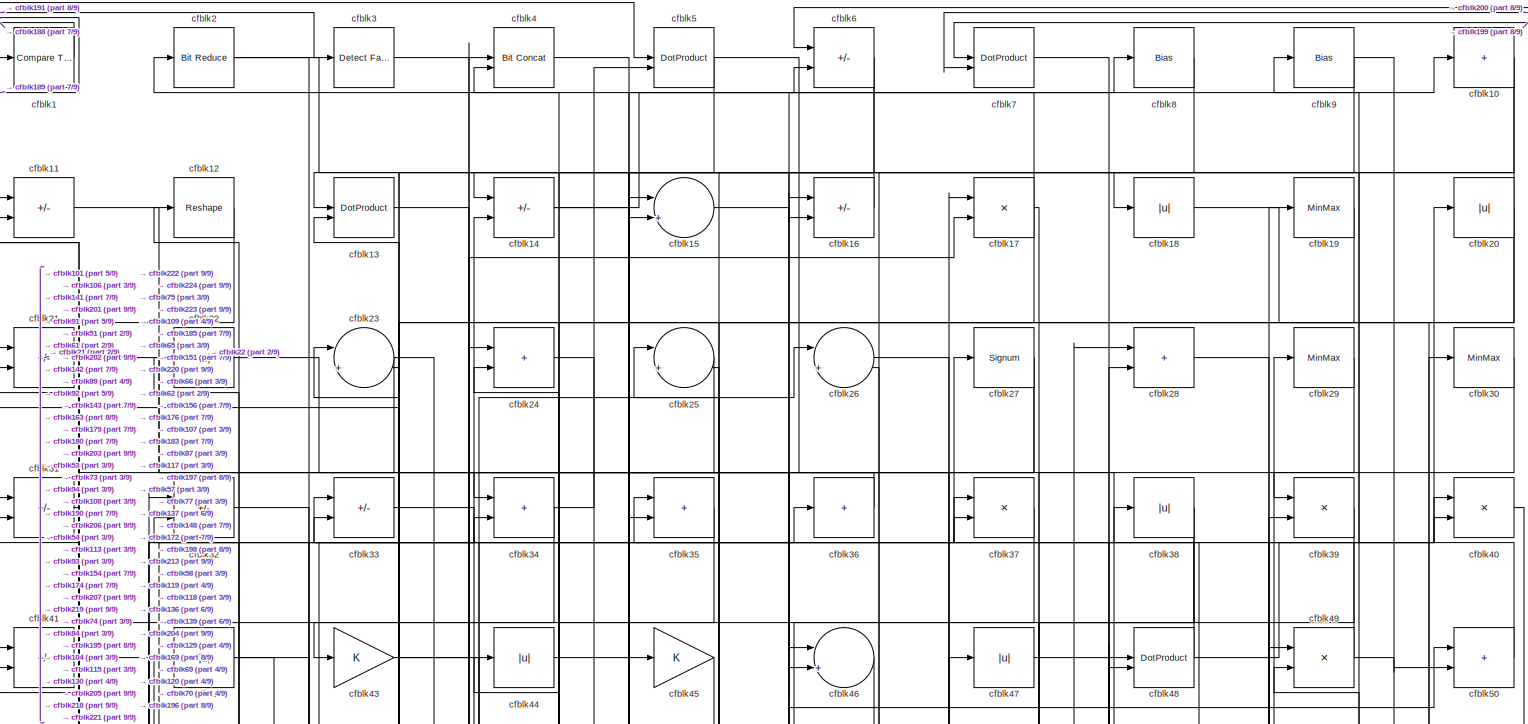
[diagram: root canvas - part 1/9, full width, top band]
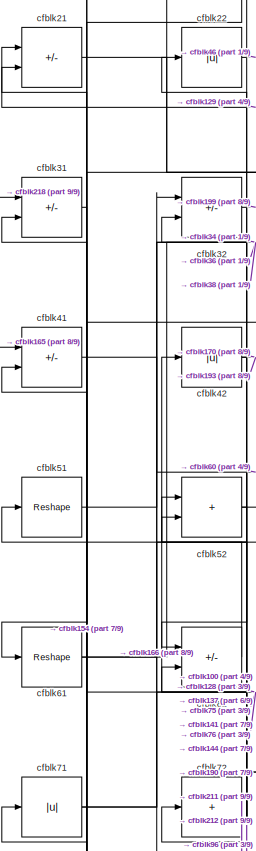
[diagram: root canvas - part 2/9, top left region]
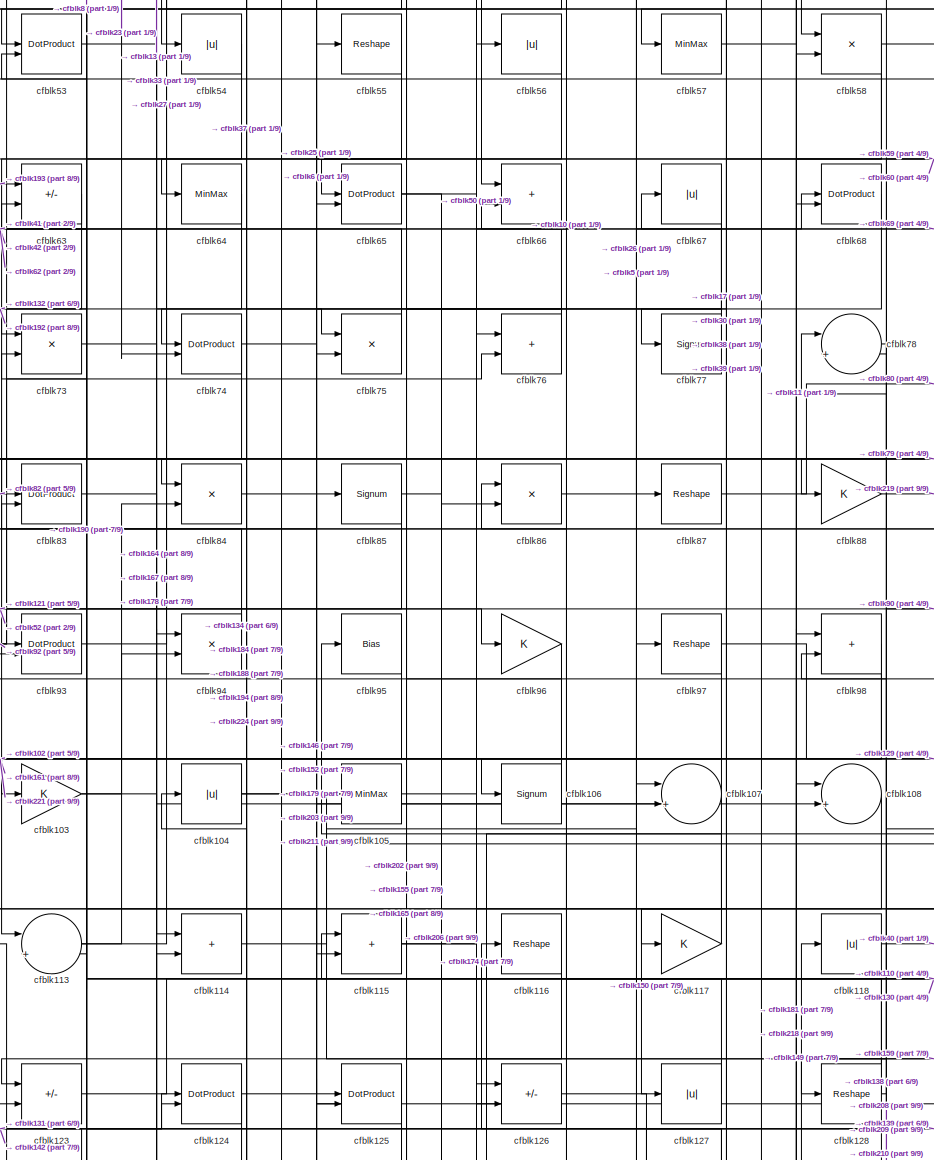
[diagram: root canvas - part 3/9, central region]
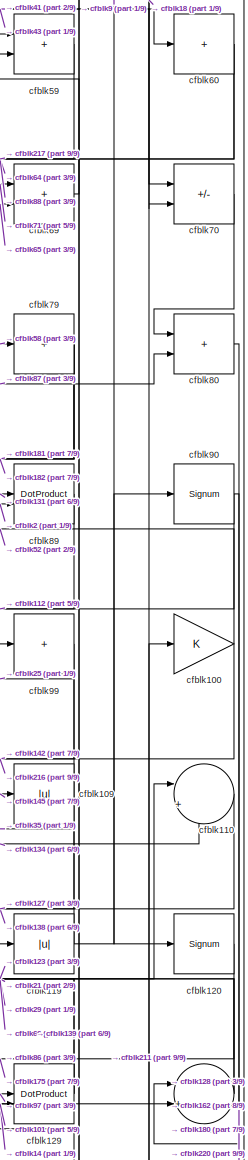
[diagram: root canvas - part 4/9, middle right region]
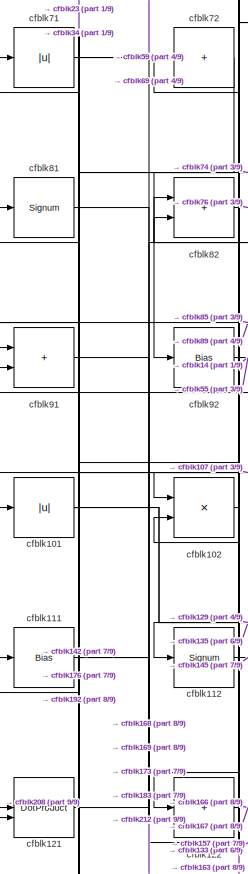
[diagram: root canvas - part 5/9, middle left region]
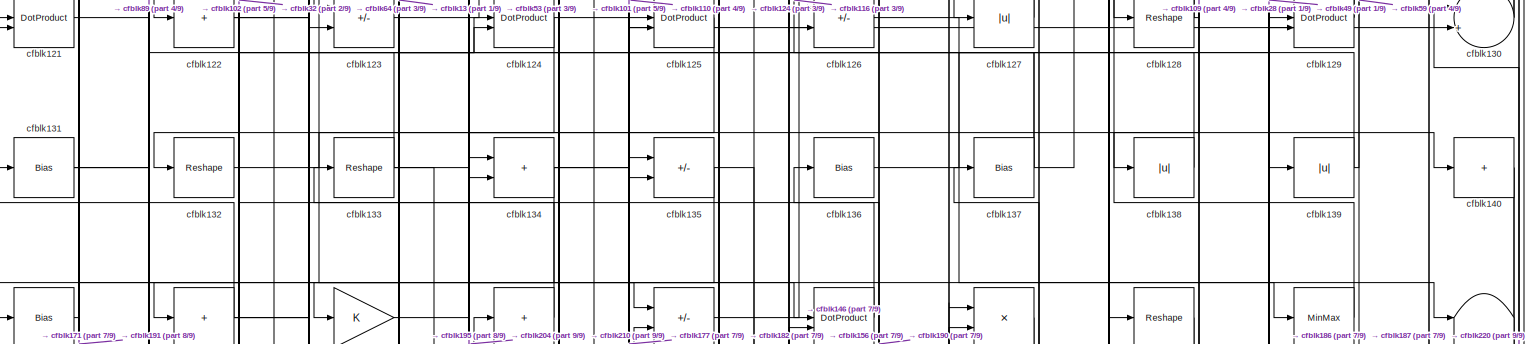
[diagram: root canvas - part 6/9, full width, middle band]
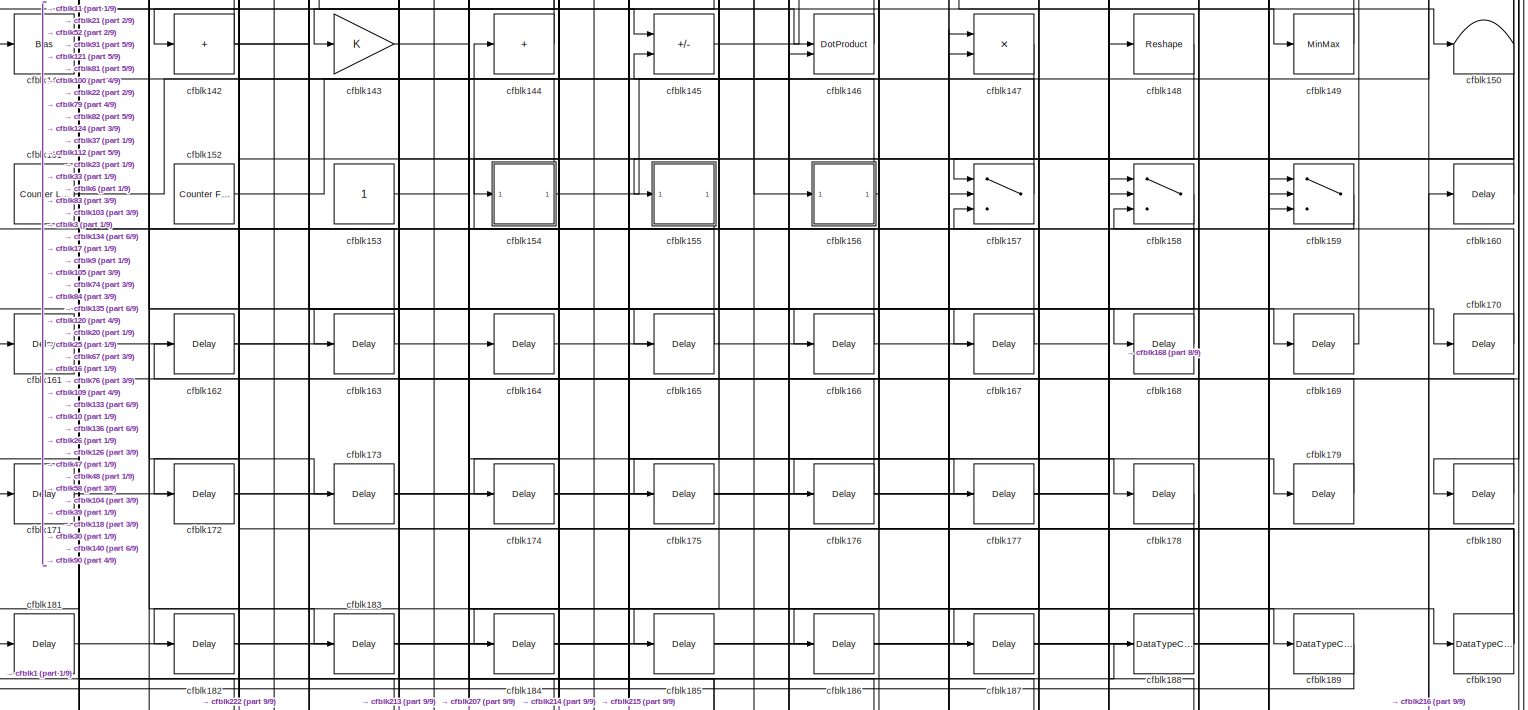
[diagram: root canvas - part 7/9, full width, bottom band]
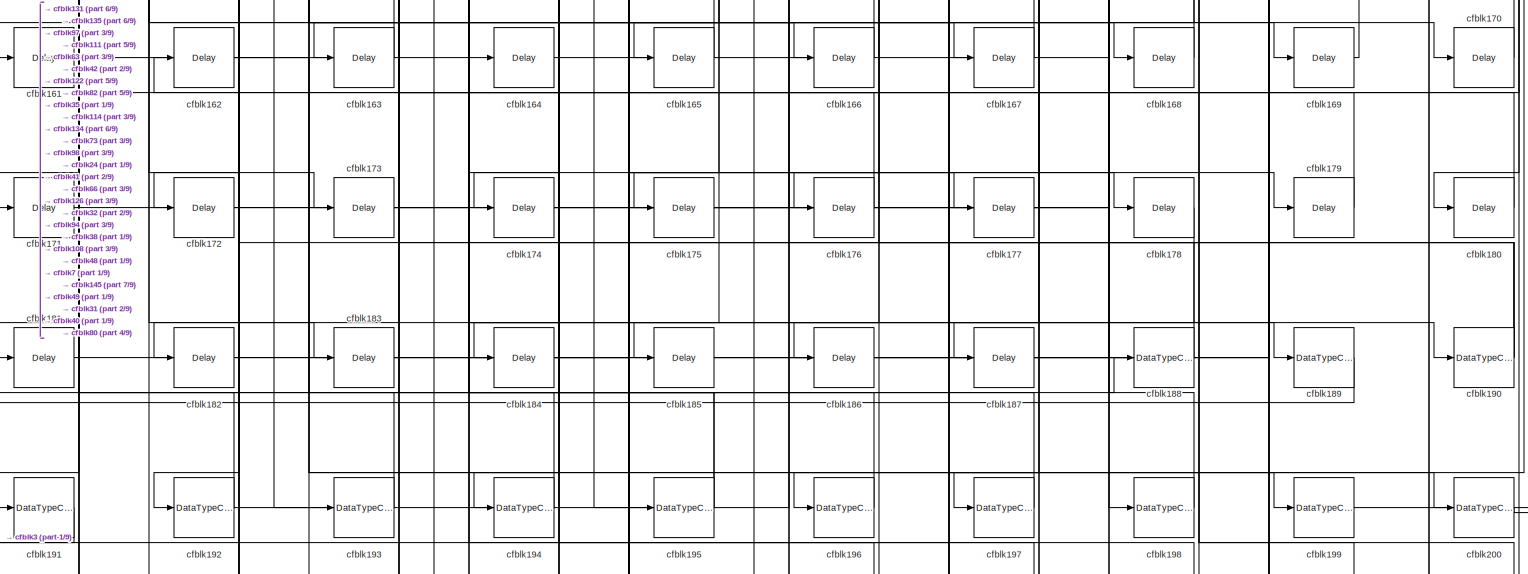
[diagram: root canvas - part 8/9, full width, bottom band]
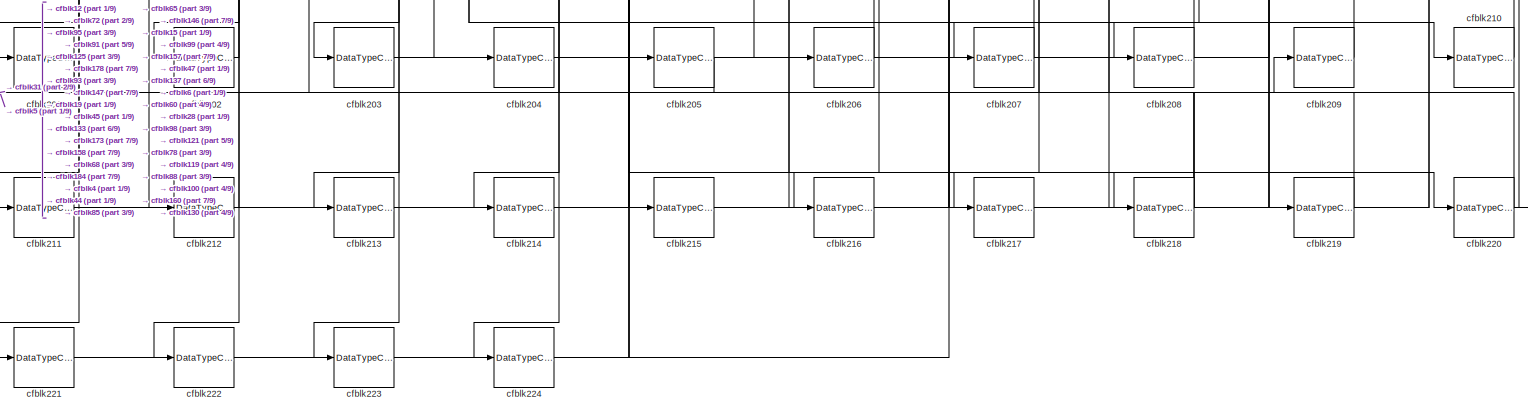
[diagram: root canvas - part 9/9, full width, bottom band]
MODEL slx_6b8f1ebeb162
KIND model
CONFIG AbsTol = auto
CONFIG EnableMultiTasking = off
CONFIG FixedStep = auto
CONFIG MaxStep = auto
CONFIG MinStep = auto
CONFIG RelTol = 1e-3
CONFIG SampleTimeConstraint = Unconstrained
CONFIG SolverName = VariableStepAuto
CONFIG StartTime = 0.0
CONFIG StopTime = 10.0
BLOCK [Reference] cfblk1  REF=hdlsllib/Logic and Bit
Operations/Compare
To Constant
  SourceBlock = hdlsllib/Logic and Bit\nOperations/Compare\nTo Constant
  SourceType = Compare To Constant
BLOCK [Sum] cfblk10
  IconShape = rectangular
  Inputs = +
BLOCK [Gain] cfblk100
BLOCK [Abs] cfblk101
  SaturateOnIntegerOverflow = off
BLOCK [Product] cfblk102
  Inputs = */
  RndMeth = Zero
  SaturateOnIntegerOverflow = on
BLOCK [Gain] cfblk103
BLOCK [Abs] cfblk104
  SaturateOnIntegerOverflow = off
BLOCK [MinMax] cfblk105
BLOCK [Signum] cfblk106
BLOCK [Sum] cfblk107
  Inputs = |++
BLOCK [Sum] cfblk108
  Inputs = |++
BLOCK [Abs] cfblk109
  SaturateOnIntegerOverflow = off
BLOCK [Sum] cfblk11
  IconShape = rectangular
  Inputs = +-
BLOCK [Sum] cfblk110
  Inputs = |++
BLOCK [Bias] cfblk111
  Bias = 0.0
  SaturateOnIntegerOverflow = off
BLOCK [Signum] cfblk112
BLOCK [Sum] cfblk113
  Inputs = |++
BLOCK [Sum] cfblk114
  IconShape = rectangular
BLOCK [Sum] cfblk115
  IconShape = rectangular
BLOCK [Reshape] cfblk116
BLOCK [Gain] cfblk117
BLOCK [Abs] cfblk118
  SaturateOnIntegerOverflow = off
BLOCK [Abs] cfblk119
  SaturateOnIntegerOverflow = off
BLOCK [Reshape] cfblk12
BLOCK [Signum] cfblk120
BLOCK [DotProduct] cfblk121
  OutDataTypeStr = Inherit: Inherit via internal rule
BLOCK [Sum] cfblk122
  IconShape = rectangular
  Inputs = +
BLOCK [Sum] cfblk123
  IconShape = rectangular
  Inputs = +-
BLOCK [DotProduct] cfblk124
  OutDataTypeStr = Inherit: Inherit via internal rule
BLOCK [DotProduct] cfblk125
  OutDataTypeStr = Inherit: Inherit via internal rule
BLOCK [Sum] cfblk126
  IconShape = rectangular
  Inputs = +-
BLOCK [Abs] cfblk127
  SaturateOnIntegerOverflow = off
BLOCK [Reshape] cfblk128
BLOCK [DotProduct] cfblk129
  OutDataTypeStr = Inherit: Inherit via internal rule
BLOCK [DotProduct] cfblk13
  OutDataTypeStr = Inherit: Inherit via internal rule
BLOCK [Sum] cfblk130
  Inputs = |++
BLOCK [Bias] cfblk131
  Bias = 0.0
  SaturateOnIntegerOverflow = off
BLOCK [Reshape] cfblk132
BLOCK [Reshape] cfblk133
BLOCK [Sum] cfblk134
  IconShape = rectangular
BLOCK [Sum] cfblk135
  IconShape = rectangular
  Inputs = +-
BLOCK [Bias] cfblk136
  Bias = 0.0
  SaturateOnIntegerOverflow = off
BLOCK [Bias] cfblk137
  Bias = 0.0
  SaturateOnIntegerOverflow = off
BLOCK [Abs] cfblk138
  SaturateOnIntegerOverflow = off
BLOCK [Abs] cfblk139
  SaturateOnIntegerOverflow = off
BLOCK [Sum] cfblk14
  IconShape = rectangular
  Inputs = +-
BLOCK [Sum] cfblk140
  IconShape = rectangular
  Inputs = +
BLOCK [Bias] cfblk141
  Bias = 0.0
  SaturateOnIntegerOverflow = off
BLOCK [Sum] cfblk142
  IconShape = rectangular
  Inputs = +
BLOCK [Gain] cfblk143
BLOCK [Sum] cfblk144
  IconShape = rectangular
  Inputs = +
BLOCK [Sum] cfblk145
  IconShape = rectangular
  Inputs = +-
BLOCK [DotProduct] cfblk146
  OutDataTypeStr = Inherit: Inherit via internal rule
BLOCK [Product] cfblk147
  Inputs = */
  RndMeth = Zero
  SaturateOnIntegerOverflow = on
BLOCK [Reshape] cfblk148
BLOCK [MinMax] cfblk149
BLOCK [Sum] cfblk15
  Inputs = |++
BLOCK [Terminator] cfblk150
BLOCK [Reference] cfblk151  REF=hdlsllib/Sources/Counter
Limited
  SourceBlock = hdlsllib/Sources/Counter\nLimited
  SourceType = Counter Limited
BLOCK [Reference] cfblk152  REF=hdlsllib/Sources/Counter
Free-Running
  SourceBlock = hdlsllib/Sources/Counter\nFree-Running
  SourceType = Counter Free-Running
BLOCK [Constant] cfblk153
  SampleTime = -1
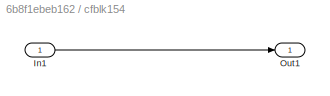
BLOCK [SubSystem] cfblk154
  LibrarySourceBlock = hdlsllib/Ports &\nSubsystems/Subsystem
BLOCK [Inport] cfblk154/In1
BLOCK [Outport] cfblk154/Out1
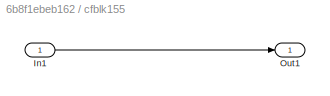
BLOCK [SubSystem] cfblk155
  LibrarySourceBlock = hdlsllib/Ports &\nSubsystems/Subsystem
BLOCK [Inport] cfblk155/In1
BLOCK [Outport] cfblk155/Out1
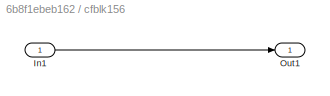
BLOCK [SubSystem] cfblk156
  LibrarySourceBlock = hdlsllib/Ports &\nSubsystems/Subsystem
BLOCK [Inport] cfblk156/In1
BLOCK [Outport] cfblk156/Out1
BLOCK [Switch] cfblk157
  InputSameDT = off
  SaturateOnIntegerOverflow = off
BLOCK [Switch] cfblk158
  InputSameDT = off
  SaturateOnIntegerOverflow = off
BLOCK [Switch] cfblk159
  InputSameDT = off
  SaturateOnIntegerOverflow = off
BLOCK [Sum] cfblk16
  IconShape = rectangular
  Inputs = +-
BLOCK [Delay] cfblk160
  InputPortMap = u0
  SampleTime = 1
BLOCK [Delay] cfblk161
  InputPortMap = u0
  SampleTime = 1
BLOCK [Delay] cfblk162
  InputPortMap = u0
  SampleTime = 1
BLOCK [Delay] cfblk163
  InputPortMap = u0
  SampleTime = 1
BLOCK [Delay] cfblk164
  InputPortMap = u0
  SampleTime = 1
BLOCK [Delay] cfblk165
  InputPortMap = u0
  SampleTime = 1
BLOCK [Delay] cfblk166
  InputPortMap = u0
  SampleTime = 1
BLOCK [Delay] cfblk167
  InputPortMap = u0
  SampleTime = 1
BLOCK [Delay] cfblk168
  InputPortMap = u0
  SampleTime = 1
BLOCK [Delay] cfblk169
  InputPortMap = u0
  SampleTime = 1
BLOCK [Product] cfblk17
  Inputs = */
  RndMeth = Zero
  SaturateOnIntegerOverflow = on
BLOCK [Delay] cfblk170
  InputPortMap = u0
  SampleTime = 1
BLOCK [Delay] cfblk171
  InputPortMap = u0
  SampleTime = 1
BLOCK [Delay] cfblk172
  InputPortMap = u0
  SampleTime = 1
BLOCK [Delay] cfblk173
  InputPortMap = u0
  SampleTime = 1
BLOCK [Delay] cfblk174
  InputPortMap = u0
  SampleTime = 1
BLOCK [Delay] cfblk175
  InputPortMap = u0
  SampleTime = 1
BLOCK [Delay] cfblk176
  InputPortMap = u0
  SampleTime = 1
BLOCK [Delay] cfblk177
  InputPortMap = u0
  SampleTime = 1
BLOCK [Delay] cfblk178
  InputPortMap = u0
  SampleTime = 1
BLOCK [Delay] cfblk179
  InputPortMap = u0
  SampleTime = 1
BLOCK [Abs] cfblk18
  SaturateOnIntegerOverflow = off
BLOCK [Delay] cfblk180
  InputPortMap = u0
  SampleTime = 1
BLOCK [Delay] cfblk181
  InputPortMap = u0
  SampleTime = 1
BLOCK [Delay] cfblk182
  InputPortMap = u0
  SampleTime = 1
BLOCK [Delay] cfblk183
  InputPortMap = u0
  SampleTime = 1
BLOCK [Delay] cfblk184
  InputPortMap = u0
  SampleTime = 1
BLOCK [Delay] cfblk185
  InputPortMap = u0
  SampleTime = 1
BLOCK [Delay] cfblk186
  InputPortMap = u0
  SampleTime = 1
BLOCK [Delay] cfblk187
  InputPortMap = u0
  SampleTime = 1
BLOCK [DataTypeConversion] cfblk188
  OutDataTypeStr = uint8
  RndMeth = Floor
  SaturateOnIntegerOverflow = off
BLOCK [DataTypeConversion] cfblk189
  OutDataTypeStr = uint8
  RndMeth = Floor
  SaturateOnIntegerOverflow = off
BLOCK [MinMax] cfblk19
BLOCK [DataTypeConversion] cfblk190
  RndMeth = Floor
  SaturateOnIntegerOverflow = off
BLOCK [DataTypeConversion] cfblk191
  OutDataTypeStr = uint8
  RndMeth = Floor
  SaturateOnIntegerOverflow = off
BLOCK [DataTypeConversion] cfblk192
  RndMeth = Floor
  SaturateOnIntegerOverflow = off
BLOCK [DataTypeConversion] cfblk193
  OutDataTypeStr = uint8
  RndMeth = Floor
  SaturateOnIntegerOverflow = off
BLOCK [DataTypeConversion] cfblk194
  OutDataTypeStr = uint8
  RndMeth = Floor
  SaturateOnIntegerOverflow = off
BLOCK [DataTypeConversion] cfblk195
  RndMeth = Floor
  SaturateOnIntegerOverflow = off
BLOCK [DataTypeConversion] cfblk196
  OutDataTypeStr = uint8
  RndMeth = Floor
  SaturateOnIntegerOverflow = off
BLOCK [DataTypeConversion] cfblk197
  OutDataTypeStr = uint8
  RndMeth = Floor
  SaturateOnIntegerOverflow = off
BLOCK [DataTypeConversion] cfblk198
  OutDataTypeStr = uint8
  RndMeth = Floor
  SaturateOnIntegerOverflow = off
BLOCK [DataTypeConversion] cfblk199
  OutDataTypeStr = uint8
  RndMeth = Floor
  SaturateOnIntegerOverflow = off
BLOCK [Reference] cfblk2  REF=hdlsllib/Logic and Bit
Operations/Bit Reduce
  SourceBlock = hdlsllib/Logic and Bit\nOperations/Bit Reduce
  SourceType = Bit Reduce
BLOCK [Abs] cfblk20
  SaturateOnIntegerOverflow = off
BLOCK [DataTypeConversion] cfblk200
  OutDataTypeStr = uint8
  RndMeth = Floor
  SaturateOnIntegerOverflow = off
BLOCK [DataTypeConversion] cfblk201
  OutDataTypeStr = uint8
  RndMeth = Floor
  SaturateOnIntegerOverflow = off
BLOCK [DataTypeConversion] cfblk202
  OutDataTypeStr = uint8
  RndMeth = Floor
  SaturateOnIntegerOverflow = off
BLOCK [DataTypeConversion] cfblk203
  OutDataTypeStr = uint8
  RndMeth = Floor
  SaturateOnIntegerOverflow = off
BLOCK [DataTypeConversion] cfblk204
  OutDataTypeStr = uint8
  RndMeth = Floor
  SaturateOnIntegerOverflow = off
BLOCK [DataTypeConversion] cfblk205
  OutDataTypeStr = uint8
  RndMeth = Floor
  SaturateOnIntegerOverflow = off
BLOCK [DataTypeConversion] cfblk206
  OutDataTypeStr = uint8
  RndMeth = Floor
  SaturateOnIntegerOverflow = off
BLOCK [DataTypeConversion] cfblk207
  OutDataTypeStr = uint8
  RndMeth = Floor
  SaturateOnIntegerOverflow = off
BLOCK [DataTypeConversion] cfblk208
  OutDataTypeStr = uint8
  RndMeth = Floor
  SaturateOnIntegerOverflow = off
BLOCK [DataTypeConversion] cfblk209
  OutDataTypeStr = uint8
  RndMeth = Floor
  SaturateOnIntegerOverflow = off
BLOCK [Sum] cfblk21
  IconShape = rectangular
  Inputs = +-
BLOCK [DataTypeConversion] cfblk210
  OutDataTypeStr = uint8
  RndMeth = Floor
  SaturateOnIntegerOverflow = off
BLOCK [DataTypeConversion] cfblk211
  RndMeth = Floor
  SaturateOnIntegerOverflow = off
BLOCK [DataTypeConversion] cfblk212
  OutDataTypeStr = uint8
  RndMeth = Floor
  SaturateOnIntegerOverflow = off
BLOCK [DataTypeConversion] cfblk213
  RndMeth = Floor
  SaturateOnIntegerOverflow = off
BLOCK [DataTypeConversion] cfblk214
  OutDataTypeStr = uint8
  RndMeth = Floor
  SaturateOnIntegerOverflow = off
BLOCK [DataTypeConversion] cfblk215
  OutDataTypeStr = uint8
  RndMeth = Floor
  SaturateOnIntegerOverflow = off
BLOCK [DataTypeConversion] cfblk216
  OutDataTypeStr = uint8
  RndMeth = Floor
  SaturateOnIntegerOverflow = off
BLOCK [DataTypeConversion] cfblk217
  OutDataTypeStr = uint8
  RndMeth = Floor
  SaturateOnIntegerOverflow = off
BLOCK [DataTypeConversion] cfblk218
  RndMeth = Floor
  SaturateOnIntegerOverflow = off
BLOCK [DataTypeConversion] cfblk219
  OutDataTypeStr = uint8
  RndMeth = Floor
  SaturateOnIntegerOverflow = off
BLOCK [Abs] cfblk22
  SaturateOnIntegerOverflow = off
BLOCK [DataTypeConversion] cfblk220
  RndMeth = Floor
  SaturateOnIntegerOverflow = off
BLOCK [DataTypeConversion] cfblk221
  OutDataTypeStr = uint8
  RndMeth = Floor
  SaturateOnIntegerOverflow = off
BLOCK [DataTypeConversion] cfblk222
  OutDataTypeStr = uint8
  RndMeth = Floor
  SaturateOnIntegerOverflow = off
BLOCK [DataTypeConversion] cfblk223
  OutDataTypeStr = uint8
  RndMeth = Floor
  SaturateOnIntegerOverflow = off
BLOCK [DataTypeConversion] cfblk224
  OutDataTypeStr = uint8
  RndMeth = Floor
  SaturateOnIntegerOverflow = off
BLOCK [Sum] cfblk23
  Inputs = |++
BLOCK [Sum] cfblk24
  IconShape = rectangular
BLOCK [Sum] cfblk25
  Inputs = |++
BLOCK [Sum] cfblk26
  Inputs = |++
BLOCK [Signum] cfblk27
BLOCK [Sum] cfblk28
  IconShape = rectangular
BLOCK [MinMax] cfblk29
BLOCK [Reference] cfblk3  REF=hdlsllib/Logic and Bit
Operations/Detect Fall
Negative
  SourceBlock = hdlsllib/Logic and Bit\nOperations/Detect Fall\nNegative
  SourceType = Detect Fall Negative
BLOCK [MinMax] cfblk30
BLOCK [Sum] cfblk31
  IconShape = rectangular
  Inputs = +-
BLOCK [Sum] cfblk32
  IconShape = rectangular
  Inputs = +-
BLOCK [Sum] cfblk33
  IconShape = rectangular
  Inputs = +-
BLOCK [Sum] cfblk34
  IconShape = rectangular
BLOCK [Sum] cfblk35
  IconShape = rectangular
BLOCK [Sum] cfblk36
  IconShape = rectangular
  Inputs = +
BLOCK [Product] cfblk37
  Inputs = */
  RndMeth = Zero
  SaturateOnIntegerOverflow = on
BLOCK [Abs] cfblk38
  SaturateOnIntegerOverflow = off
BLOCK [Product] cfblk39
  Inputs = */
  RndMeth = Zero
  SaturateOnIntegerOverflow = on
BLOCK [Reference] cfblk4  REF=hdlsllib/Logic and Bit
Operations/Bit Concat
  SourceBlock = hdlsllib/Logic and Bit\nOperations/Bit Concat
  SourceType = Bit Concat
BLOCK [Product] cfblk40
  Inputs = */
  RndMeth = Zero
  SaturateOnIntegerOverflow = on
BLOCK [Sum] cfblk41
  IconShape = rectangular
  Inputs = +-
BLOCK [Abs] cfblk42
  SaturateOnIntegerOverflow = off
BLOCK [Gain] cfblk43
BLOCK [Abs] cfblk44
  SaturateOnIntegerOverflow = off
BLOCK [Gain] cfblk45
BLOCK [Sum] cfblk46
  Inputs = |++
BLOCK [Abs] cfblk47
  SaturateOnIntegerOverflow = off
BLOCK [DotProduct] cfblk48
  OutDataTypeStr = Inherit: Inherit via internal rule
BLOCK [Product] cfblk49
  Inputs = */
  RndMeth = Zero
  SaturateOnIntegerOverflow = on
BLOCK [DotProduct] cfblk5
  OutDataTypeStr = Inherit: Inherit via internal rule
BLOCK [Sum] cfblk50
  IconShape = rectangular
BLOCK [Reshape] cfblk51
BLOCK [Sum] cfblk52
  IconShape = rectangular
BLOCK [DotProduct] cfblk53
  OutDataTypeStr = Inherit: Inherit via internal rule
BLOCK [Abs] cfblk54
  SaturateOnIntegerOverflow = off
BLOCK [Reshape] cfblk55
BLOCK [Abs] cfblk56
  SaturateOnIntegerOverflow = off
BLOCK [MinMax] cfblk57
BLOCK [Product] cfblk58
  Inputs = */
  RndMeth = Zero
  SaturateOnIntegerOverflow = on
BLOCK [Sum] cfblk59
  IconShape = rectangular
BLOCK [Sum] cfblk6
  IconShape = rectangular
  Inputs = +-
BLOCK [Sum] cfblk60
  IconShape = rectangular
  Inputs = +
BLOCK [Reshape] cfblk61
BLOCK [Sum] cfblk62
  IconShape = rectangular
  Inputs = +-
BLOCK [Sum] cfblk63
  IconShape = rectangular
  Inputs = +-
BLOCK [MinMax] cfblk64
BLOCK [DotProduct] cfblk65
  OutDataTypeStr = Inherit: Inherit via internal rule
BLOCK [Sum] cfblk66
  IconShape = rectangular
BLOCK [Abs] cfblk67
  SaturateOnIntegerOverflow = off
BLOCK [DotProduct] cfblk68
  OutDataTypeStr = Inherit: Inherit via internal rule
BLOCK [Sum] cfblk69
  IconShape = rectangular
BLOCK [DotProduct] cfblk7
  OutDataTypeStr = Inherit: Inherit via internal rule
BLOCK [Sum] cfblk70
  IconShape = rectangular
  Inputs = +-
BLOCK [Abs] cfblk71
  SaturateOnIntegerOverflow = off
BLOCK [Sum] cfblk72
  IconShape = rectangular
  Inputs = +
BLOCK [Product] cfblk73
  Inputs = */
  RndMeth = Zero
  SaturateOnIntegerOverflow = on
BLOCK [DotProduct] cfblk74
  OutDataTypeStr = Inherit: Inherit via internal rule
BLOCK [Product] cfblk75
  Inputs = */
  RndMeth = Zero
  SaturateOnIntegerOverflow = on
BLOCK [Sum] cfblk76
  IconShape = rectangular
BLOCK [Signum] cfblk77
BLOCK [Sum] cfblk78
  Inputs = |++
BLOCK [Sum] cfblk79
  IconShape = rectangular
  Inputs = +
BLOCK [Bias] cfblk8
  Bias = 0.0
  SaturateOnIntegerOverflow = off
BLOCK [Sum] cfblk80
  IconShape = rectangular
BLOCK [Signum] cfblk81
BLOCK [Sum] cfblk82
  IconShape = rectangular
BLOCK [DotProduct] cfblk83
  OutDataTypeStr = Inherit: Inherit via internal rule
BLOCK [Product] cfblk84
  Inputs = */
  RndMeth = Zero
  SaturateOnIntegerOverflow = on
BLOCK [Signum] cfblk85
BLOCK [Product] cfblk86
  Inputs = */
  RndMeth = Zero
  SaturateOnIntegerOverflow = on
BLOCK [Reshape] cfblk87
BLOCK [Gain] cfblk88
BLOCK [DotProduct] cfblk89
  OutDataTypeStr = Inherit: Inherit via internal rule
BLOCK [Bias] cfblk9
  Bias = 0.0
  SaturateOnIntegerOverflow = off
BLOCK [Signum] cfblk90
BLOCK [Sum] cfblk91
  IconShape = rectangular
BLOCK [Bias] cfblk92
  Bias = 0.0
  SaturateOnIntegerOverflow = off
BLOCK [DotProduct] cfblk93
  OutDataTypeStr = Inherit: Inherit via internal rule
BLOCK [Product] cfblk94
  Inputs = */
  RndMeth = Zero
  SaturateOnIntegerOverflow = on
BLOCK [Bias] cfblk95
  Bias = 0.0
  SaturateOnIntegerOverflow = off
BLOCK [Gain] cfblk96
BLOCK [Reshape] cfblk97
BLOCK [Sum] cfblk98
  IconShape = rectangular
BLOCK [Sum] cfblk99
  IconShape = rectangular
  Inputs = +
NET cfblk100:1 -> cfblk142:1, cfblk52:2
NET cfblk101:1 -> cfblk129:2, cfblk135:1, cfblk71:1
LINE cfblk102:1 -> cfblk122:1
NET cfblk103:1 -> cfblk178:1, cfblk84:2
NET cfblk104:1 -> cfblk159:1, cfblk6:2
LINE cfblk105:1 -> cfblk56:1
LINE cfblk106:1 -> cfblk11:1
NET cfblk107:1 -> cfblk102:1, cfblk126:2
LINE cfblk108:1 -> cfblk113:2
NET cfblk109:1 -> cfblk138:1, cfblk25:2
NET cfblk10:1 -> cfblk176:1, cfblk65:1
LINE cfblk110:1 -> cfblk127:1
NET cfblk111:1 -> cfblk168:1, cfblk169:1
LINE cfblk112:1 -> cfblk145:1
NET cfblk113:1 -> cfblk26:1, cfblk94:2
LINE cfblk114:1 -> cfblk97:1
NET cfblk115:1 -> cfblk10:1, cfblk50:1
LINE cfblk116:1 -> cfblk123:1
LINE cfblk117:1 -> cfblk95:1
LINE cfblk118:1 -> cfblk40:1
NET cfblk119:1 -> cfblk35:1, cfblk90:1
LINE cfblk11:1 -> cfblk58:1
LINE cfblk120:1 -> cfblk175:1
LINE cfblk121:1 -> cfblk173:1
NET cfblk122:1 -> cfblk166:1, cfblk167:1
LINE cfblk123:1 -> cfblk110:1
NET cfblk124:1 -> cfblk107:2, cfblk134:2
LINE cfblk125:1 -> cfblk202:1
LINE cfblk126:1 -> cfblk150:1
LINE cfblk127:1 -> cfblk115:1
NET cfblk128:1 -> cfblk62:2, cfblk73:2, cfblk98:2
NET cfblk129:1 -> cfblk21:2, cfblk29:1
LINE cfblk12:1 -> cfblk201:1
NET cfblk130:1 -> cfblk66:2, cfblk86:1
NET cfblk131:1 -> cfblk124:2, cfblk89:1
LINE cfblk132:1 -> cfblk140:1
NET cfblk133:1 -> cfblk102:2, cfblk204:1, cfblk210:1
NET cfblk134:1 -> cfblk110:2, cfblk171:1, cfblk177:1
NET cfblk135:1 -> cfblk156:1, cfblk191:1
LINE cfblk136:1 -> cfblk49:1
NET cfblk137:1 -> cfblk13:2, cfblk28:1, cfblk32:2
LINE cfblk138:1 -> cfblk53:2
NET cfblk139:1 -> cfblk116:1, cfblk59:2
LINE cfblk13:1 -> cfblk108:2
NET cfblk140:1 -> cfblk186:1, cfblk187:1
LINE cfblk141:1 -> cfblk11:2
NET cfblk142:1 -> cfblk124:1, cfblk37:1, cfblk81:1
LINE cfblk143:1 -> cfblk149:1
LINE cfblk144:1 -> cfblk52:1
LINE cfblk145:1 -> cfblk109:1
LINE cfblk146:1 -> cfblk133:1
LINE cfblk147:1 -> cfblk213:1
LINE cfblk148:1 -> cfblk172:1
LINE cfblk149:1 -> cfblk118:1
NET cfblk14:1 -> cfblk130:2, cfblk8:1
LINE cfblk151:1 -> cfblk16:1
LINE cfblk152:1 -> cfblk105:1
LINE cfblk153:1 -> cfblk189:1
LINE cfblk154/In1:1 -> cfblk154/Out1:1
NET cfblk154:1 -> cfblk21:1, cfblk30:1
LINE cfblk155/In1:1 -> cfblk155/Out1:1
LINE cfblk155:1 -> cfblk144:1
LINE cfblk156/In1:1 -> cfblk156/Out1:1
NET cfblk156:1 -> cfblk25:1, cfblk26:2
LINE cfblk157:1 -> cfblk82:1
LINE cfblk158:1 -> cfblk214:1
LINE cfblk159:1 -> cfblk158:3
LINE cfblk15:1 -> cfblk220:1
LINE cfblk160:1 -> cfblk157:1
LINE cfblk161:1 -> cfblk114:2
LINE cfblk162:1 -> cfblk200:1
LINE cfblk163:1 -> cfblk82:2
LINE cfblk164:1 -> cfblk108:1
LINE cfblk165:1 -> cfblk41:1
LINE cfblk166:1 -> cfblk32:1
LINE cfblk167:1 -> cfblk94:1
LINE cfblk168:1 -> cfblk145:2
LINE cfblk169:1 -> cfblk49:2
LINE cfblk16:1 -> cfblk13:1
LINE cfblk170:1 -> cfblk31:2
LINE cfblk171:1 -> cfblk158:1
LINE cfblk172:1 -> cfblk48:2
LINE cfblk173:1 -> cfblk207:1
LINE cfblk174:1 -> cfblk76:1
LINE cfblk175:1 -> cfblk158:2
LINE cfblk176:1 -> cfblk91:2
LINE cfblk177:1 -> cfblk157:3
LINE cfblk178:1 -> cfblk222:1
LINE cfblk179:1 -> cfblk33:2
NET cfblk17:1 -> cfblk154:1, cfblk2:1, cfblk57:1
LINE cfblk180:1 -> cfblk23:2
LINE cfblk181:1 -> cfblk58:2
LINE cfblk182:1 -> cfblk135:2
LINE cfblk183:1 -> cfblk17:1
LINE cfblk184:1 -> cfblk215:1
LINE cfblk185:1 -> cfblk39:2
LINE cfblk186:1 -> cfblk159:2
LINE cfblk187:1 -> cfblk159:3
LINE cfblk188:1 -> cfblk104:1
LINE cfblk189:1 -> cfblk1:1
LINE cfblk18:1 -> cfblk70:1
NET cfblk190:1 -> cfblk136:1, cfblk22:1, cfblk83:2
LINE cfblk191:1 -> cfblk3:1
NET cfblk192:1 -> cfblk111:1, cfblk126:1
LINE cfblk193:1 -> cfblk63:1
LINE cfblk194:1 -> cfblk63:2
NET cfblk195:1 -> cfblk131:1, cfblk134:1
LINE cfblk196:1 -> cfblk24:1
LINE cfblk197:1 -> cfblk24:2
LINE cfblk198:1 -> cfblk48:1
LINE cfblk199:1 -> cfblk7:1
LINE cfblk19:1 -> cfblk203:1
LINE cfblk1:1 -> cfblk188:1
LINE cfblk200:1 -> cfblk7:2
LINE cfblk201:1 -> cfblk5:1
LINE cfblk202:1 -> cfblk12:1
LINE cfblk203:1 -> cfblk125:1
LINE cfblk204:1 -> cfblk19:1
LINE cfblk205:1 -> cfblk209:1
LINE cfblk206:1 -> cfblk4:1
LINE cfblk207:1 -> cfblk4:2
LINE cfblk208:1 -> cfblk121:1
LINE cfblk209:1 -> cfblk78:1
NET cfblk20:1 -> cfblk185:1, cfblk18:1, cfblk43:1
LINE cfblk210:1 -> cfblk78:2
NET cfblk211:1 -> cfblk100:1, cfblk119:1, cfblk85:1
LINE cfblk212:1 -> cfblk72:1
NET cfblk213:1 -> cfblk146:2, cfblk157:2, cfblk28:2
LINE cfblk214:1 -> cfblk147:1
LINE cfblk215:1 -> cfblk147:2
LINE cfblk216:1 -> cfblk160:1
LINE cfblk217:1 -> cfblk99:1
NET cfblk218:1 -> cfblk31:1, cfblk93:1, cfblk98:1
LINE cfblk219:1 -> cfblk44:1
LINE cfblk21:1 -> cfblk46:2
NET cfblk220:1 -> cfblk130:1, cfblk137:1, cfblk6:1
LINE cfblk221:1 -> cfblk15:1
LINE cfblk222:1 -> cfblk15:2
LINE cfblk223:1 -> cfblk47:1
LINE cfblk224:1 -> cfblk45:1
LINE cfblk22:1 -> cfblk46:1
NET cfblk23:1 -> cfblk74:2, cfblk91:1
LINE cfblk24:1 -> cfblk195:1
LINE cfblk25:1 -> cfblk75:2
LINE cfblk26:1 -> cfblk87:1
NET cfblk27:1 -> cfblk73:1, cfblk84:1
LINE cfblk28:1 -> cfblk139:1
LINE cfblk29:1 -> cfblk39:1
NET cfblk2:1 -> cfblk16:2, cfblk89:2
LINE cfblk30:1 -> cfblk77:1
LINE cfblk31:1 -> cfblk61:1
LINE cfblk32:1 -> cfblk199:1
LINE cfblk33:1 -> cfblk54:1
NET cfblk34:1 -> cfblk101:1, cfblk5:2
LINE cfblk35:1 -> cfblk163:1
LINE cfblk36:1 -> cfblk34:1
LINE cfblk37:1 -> cfblk74:1
NET cfblk38:1 -> cfblk197:1, cfblk66:1
LINE cfblk39:1 -> cfblk117:1
LINE cfblk3:1 -> cfblk190:1
LINE cfblk40:1 -> cfblk196:1
LINE cfblk41:1 -> cfblk60:1
NET cfblk42:1 -> cfblk170:1, cfblk193:1
NET cfblk43:1 -> cfblk17:2, cfblk70:2
LINE cfblk44:1 -> cfblk218:1
LINE cfblk45:1 -> cfblk223:1
LINE cfblk46:1 -> cfblk62:1
LINE cfblk47:1 -> cfblk148:1
NET cfblk48:1 -> cfblk20:1, cfblk37:2
NET cfblk49:1 -> cfblk33:1, cfblk50:2
LINE cfblk4:1 -> cfblk205:1
LINE cfblk50:1 -> cfblk14:1
LINE cfblk51:1 -> cfblk38:1
NET cfblk52:1 -> cfblk141:1, cfblk96:1
LINE cfblk53:1 -> cfblk75:1
LINE cfblk54:1 -> cfblk83:1
LINE cfblk55:1 -> cfblk65:2
LINE cfblk56:1 -> cfblk113:1
LINE cfblk57:1 -> cfblk40:2
NET cfblk58:1 -> cfblk68:2, cfblk79:1, cfblk93:2
LINE cfblk59:1 -> cfblk64:1
NET cfblk5:1 -> cfblk107:1, cfblk35:2
NET cfblk60:1 -> cfblk217:1, cfblk88:1
NET cfblk61:1 -> cfblk34:2, cfblk36:1
LINE cfblk62:1 -> cfblk51:1
LINE cfblk63:1 -> cfblk192:1
LINE cfblk64:1 -> cfblk132:1
NET cfblk65:1 -> cfblk206:1, cfblk69:2
NET cfblk66:1 -> cfblk125:2, cfblk165:1
NET cfblk67:1 -> cfblk155:1, cfblk184:1
LINE cfblk68:1 -> cfblk224:1
LINE cfblk69:1 -> cfblk9:1
NET cfblk6:1 -> cfblk115:2, cfblk143:1
LINE cfblk70:1 -> cfblk80:1
NET cfblk71:1 -> cfblk59:1, cfblk69:1
LINE cfblk72:1 -> cfblk211:1
LINE cfblk73:1 -> cfblk164:1
NET cfblk74:1 -> cfblk146:1, cfblk92:1
LINE cfblk75:1 -> cfblk42:1
LINE cfblk76:1 -> cfblk41:2
LINE cfblk77:1 -> cfblk67:1
LINE cfblk78:1 -> cfblk208:1
NET cfblk79:1 -> cfblk123:2, cfblk181:1, cfblk182:1
LINE cfblk7:1 -> cfblk198:1
LINE cfblk80:1 -> cfblk162:1
LINE cfblk81:1 -> cfblk183:1
LINE cfblk82:1 -> cfblk76:2
LINE cfblk83:1 -> cfblk114:1
LINE cfblk84:1 -> cfblk179:1
NET cfblk85:1 -> cfblk121:2, cfblk86:2
LINE cfblk86:1 -> cfblk68:1
LINE cfblk87:1 -> cfblk80:2
LINE cfblk88:1 -> cfblk219:1
LINE cfblk89:1 -> cfblk112:1
LINE cfblk8:1 -> cfblk53:1
NET cfblk90:1 -> cfblk128:1, cfblk180:1
LINE cfblk91:1 -> cfblk212:1
NET cfblk92:1 -> cfblk14:2, cfblk55:1
LINE cfblk93:1 -> cfblk27:1
LINE cfblk94:1 -> cfblk23:1
LINE cfblk95:1 -> cfblk221:1
LINE cfblk96:1 -> cfblk106:1
NET cfblk97:1 -> cfblk129:1, cfblk161:1
NET cfblk98:1 -> cfblk103:1, cfblk194:1
LINE cfblk99:1 -> cfblk216:1
NET cfblk9:1 -> cfblk120:1, cfblk174:1
note: NET lines group one-source signal fan-out (src -> all destinations, sorted); 1:1 wires keep LINE
